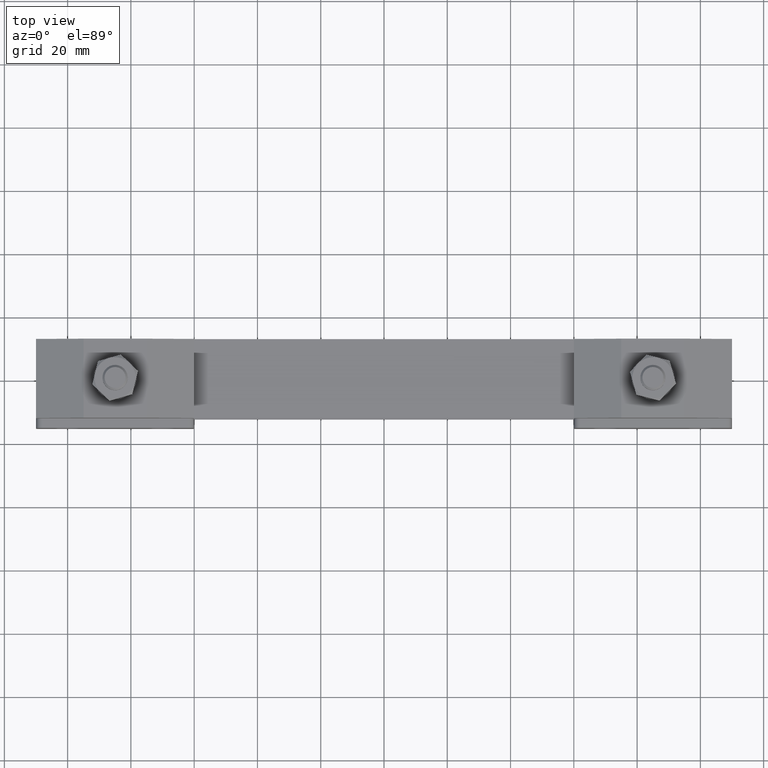
[diagram: clean part render]
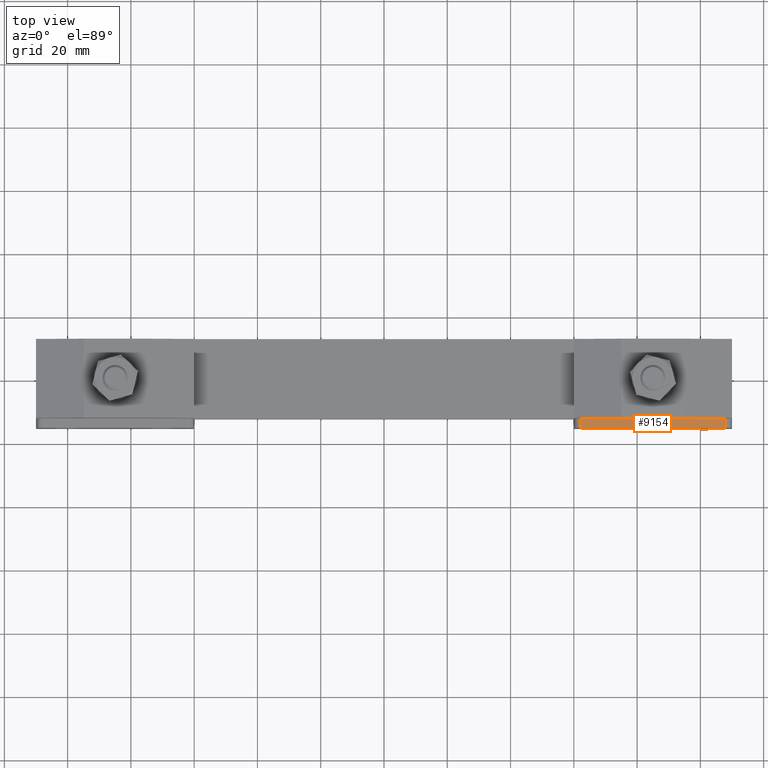
[diagram: same view with one face highlighted and labeled with its STEP entity id]
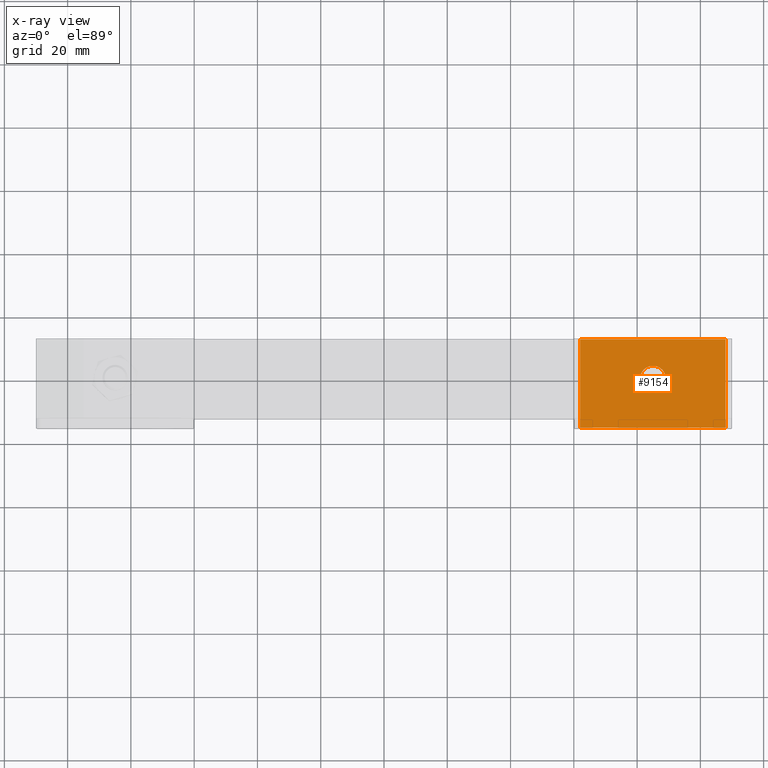
[diagram: x-ray of the same camera — body ghosted, the highlighted face saturated]
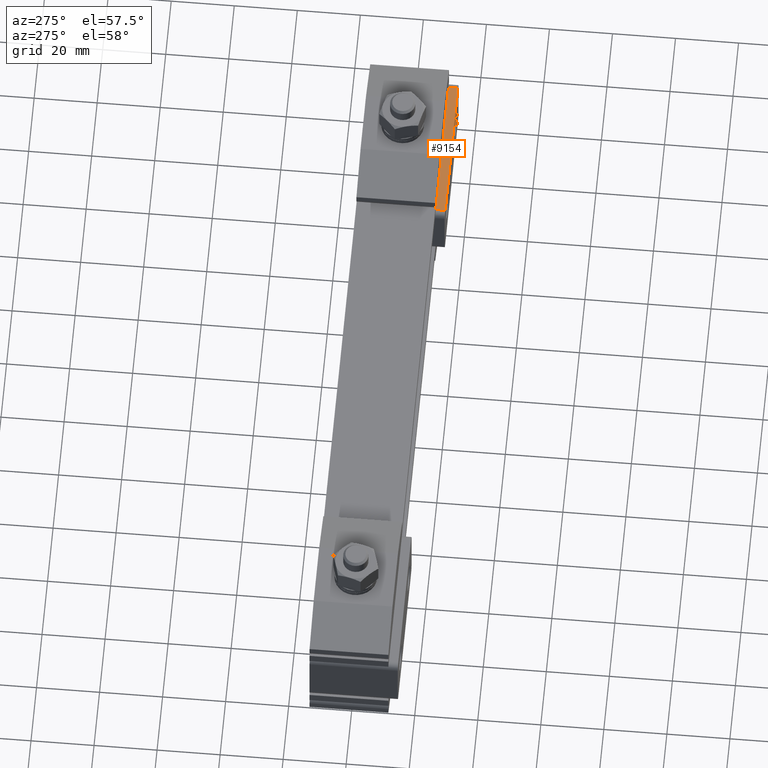
[diagram: same view with one face highlighted and labeled with its STEP entity id]
A machine part, top view. The second image highlights one B-rep face of the part: STEP entity #9154.
The next image is the same camera in x-ray: the body ghosted, the highlighted face saturated — about 0% of this face is hidden behind the body in this view.
A second angle (auxiliary view) of the same face is appended — the face is thin or edge-on in the first view.
In plain terms, the highlighted planar face has unit normal (0, -0, 1).
Its self-contained STEP definition (entity closure, byte-faithful):
#320 = AXIS2_PLACEMENT_3D ( 'NONE', #9732, #16144, #16073 ) ;
#518 = CARTESIAN_POINT ( 'NONE',  ( 62.00000000000000000, -15.50000000000000000, 23.00000000000000000 ) ) ;
#546 = DIRECTION ( 'NONE',  ( -1.000000000000000000, -7.771561172376080000E-016, 0.0000000000000000000 ) ) ;
#771 = EDGE_LOOP ( 'NONE', ( #12184, #2126 ) ) ;
#773 = CARTESIAN_POINT ( 'NONE',  ( 60.00000000000000000, -15.50000000000000000, 23.00000000000000000 ) ) ;
#1334 = ORIENTED_EDGE ( 'NONE', *, *, #9930, .T. ) ;
#1924 = DIRECTION ( 'NONE',  ( 0.0000000000000000000, 0.0000000000000000000, 1.000000000000000000 ) ) ;
#2092 = CARTESIAN_POINT ( 'NONE',  ( 89.10000000000000900, 2.140093657843069100E-014, 23.00000000000000000 ) ) ;
#2126 = ORIENTED_EDGE ( 'NONE', *, *, #12992, .F. ) ;
#2671 = EDGE_CURVE ( 'NONE', #14473, #12166, #14390, .T. ) ;
#3064 = EDGE_CURVE ( 'NONE', #19098, #6235, #18480, .T. ) ;
#3215 = ORIENTED_EDGE ( 'NONE', *, *, #2671, .T. ) ;
#3240 = DIRECTION ( 'NONE',  ( 0.0000000000000000000, -0.0000000000000000000, 1.000000000000000000 ) ) ;
#3554 = DIRECTION ( 'NONE',  ( -7.771561172376080000E-016, -1.000000000000000000, 0.0000000000000000000 ) ) ;
#3947 = CARTESIAN_POINT ( 'NONE',  ( 62.00000000000000000, 12.50000000000000000, 23.00000000000000000 ) ) ;
#4090 = DIRECTION ( 'NONE',  ( 1.000000000000000000, 7.771561172376080000E-016, 0.0000000000000000000 ) ) ;
#4142 = CIRCLE ( 'NONE', #320, 4.100000000000006800 ) ;
#4360 = ORIENTED_EDGE ( 'NONE', *, *, #3064, .T. ) ;
#4716 = AXIS2_PLACEMENT_3D ( 'NONE', #6420, #3240, #4891 ) ;
#4852 = VECTOR ( 'NONE', #546, 1000.000000000000000 ) ;
#4891 = DIRECTION ( 'NONE',  ( 1.000000000000000000, 7.771561172376080000E-016, 0.0000000000000000000 ) ) ;
#5233 = VECTOR ( 'NONE', #9441, 1000.000000000000000 ) ;
#5490 = CARTESIAN_POINT ( 'NONE',  ( 62.00000000000000000, -15.50000000000000000, 23.00000000000000000 ) ) ;
#6235 = VERTEX_POINT ( 'NONE', #3947 ) ;
#6405 = CARTESIAN_POINT ( 'NONE',  ( 108.0000000000000000, -15.50000000000000000, 23.00000000000000000 ) ) ;
#6420 = CARTESIAN_POINT ( 'NONE',  ( 60.00000000000000000, -15.50000000000000000, 23.00000000000000000 ) ) ;
#6996 = EDGE_LOOP ( 'NONE', ( #3215, #12964, #4360, #1334 ) ) ;
#8461 = CIRCLE ( 'NONE', #20710, 4.100000000000006800 ) ;
#8728 = CARTESIAN_POINT ( 'NONE',  ( 60.00000000000000000, 12.50000000000000000, 23.00000000000000000 ) ) ;
#9027 = VERTEX_POINT ( 'NONE', #19044 ) ;
#9154 = ADVANCED_FACE ( 'NONE', ( #10476, #11503 ), #16249, .T. ) ;
#9441 = DIRECTION ( 'NONE',  ( 7.771561172376080000E-016, 1.000000000000000000, 0.0000000000000000000 ) ) ;
#9732 = CARTESIAN_POINT ( 'NONE',  ( 85.00000000000000000, 1.821459649775650000E-014, 23.00000000000000000 ) ) ;
#9930 = EDGE_CURVE ( 'NONE', #6235, #14473, #19133, .T. ) ;
#10040 = CARTESIAN_POINT ( 'NONE',  ( 108.0000000000000000, 12.50000000000000000, 23.00000000000000000 ) ) ;
#10476 = FACE_BOUND ( 'NONE', #771, .T. ) ;
#10896 = LINE ( 'NONE', #15789, #5233 ) ;
#11503 = FACE_OUTER_BOUND ( 'NONE', #6996, .T. ) ;
#12166 = VERTEX_POINT ( 'NONE', #6405 ) ;
#12184 = ORIENTED_EDGE ( 'NONE', *, *, #15863, .F. ) ;
#12378 = VERTEX_POINT ( 'NONE', #2092 ) ;
#12964 = ORIENTED_EDGE ( 'NONE', *, *, #19889, .T. ) ;
#12992 = EDGE_CURVE ( 'NONE', #9027, #12378, #4142, .T. ) ;
#14390 = LINE ( 'NONE', #773, #20822 ) ;
#14473 = VERTEX_POINT ( 'NONE', #518 ) ;
#15789 = CARTESIAN_POINT ( 'NONE',  ( 108.0000000000000000, 12.50000000000000000, 23.00000000000000000 ) ) ;
#15863 = EDGE_CURVE ( 'NONE', #12378, #9027, #8461, .T. ) ;
#16073 = DIRECTION ( 'NONE',  ( 1.000000000000000000, 7.771561172376068200E-016, 0.0000000000000000000 ) ) ;
#16144 = DIRECTION ( 'NONE',  ( 0.0000000000000000000, 0.0000000000000000000, 1.000000000000000000 ) ) ;
#16249 = PLANE ( 'NONE',  #4716 ) ;
#18201 = DIRECTION ( 'NONE',  ( 1.000000000000000000, 7.771561172376068200E-016, 0.0000000000000000000 ) ) ;
#18419 = CARTESIAN_POINT ( 'NONE',  ( 85.00000000000000000, 1.821459649775650000E-014, 23.00000000000000000 ) ) ;
#18480 = LINE ( 'NONE', #8728, #4852 ) ;
#19044 = CARTESIAN_POINT ( 'NONE',  ( 80.90000000000000600, 1.553036160473272600E-014, 23.00000000000000000 ) ) ;
#19098 = VERTEX_POINT ( 'NONE', #10040 ) ;
#19133 = LINE ( 'NONE', #5490, #20166 ) ;
#19889 = EDGE_CURVE ( 'NONE', #12166, #19098, #10896, .T. ) ;
#20166 = VECTOR ( 'NONE', #3554, 1000.000000000000000 ) ;
#20710 = AXIS2_PLACEMENT_3D ( 'NONE', #18419, #1924, #18201 ) ;
#20822 = VECTOR ( 'NONE', #4090, 1000.000000000000000 ) ;